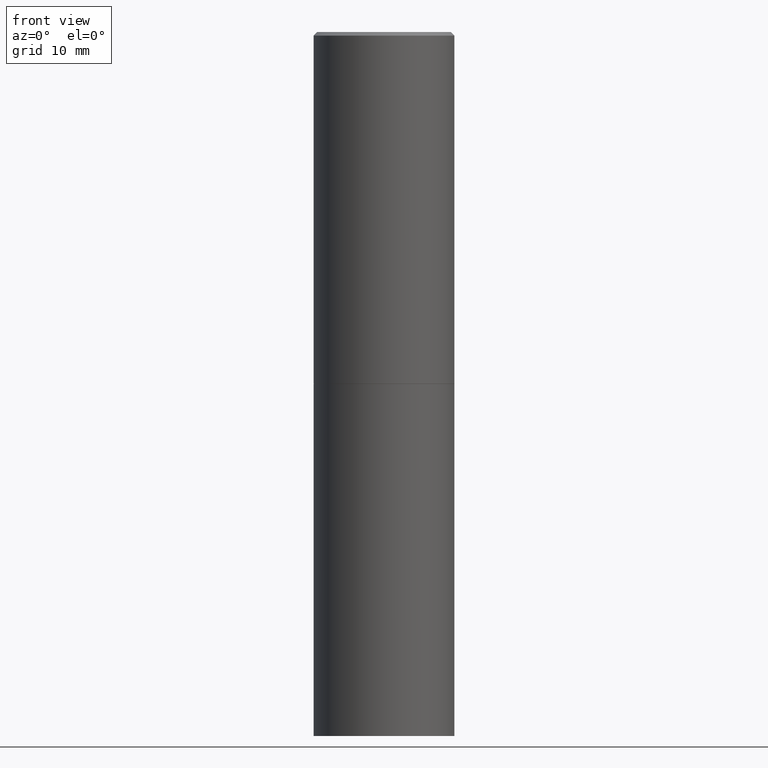
[diagram: clean part render]
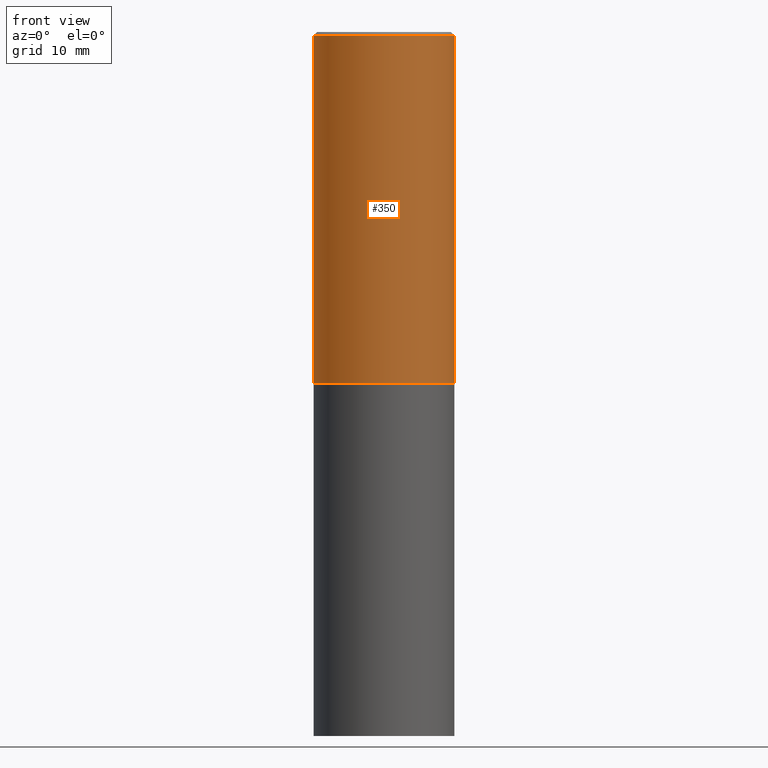
[diagram: same view with one face highlighted and labeled with its STEP entity id]
A machine part, front view. The second image highlights one B-rep face of the part: STEP entity #350.
In plain terms, the highlighted cylindrical surface (partial cylindrical patch) has radius 10 mm, axis along (-0, 0, 1).
Its self-contained STEP definition (entity closure, byte-faithful):
#2 = CARTESIAN_POINT ( 'NONE',  ( -0.3937000000000001609, -6.722528297878588461E-16, -1.967500000000000027 ) ) ;
#10 = VECTOR ( 'NONE', #147, 39.37007874015748143 ) ;
#20 = CARTESIAN_POINT ( 'NONE',  ( -0.3936999999999998279, 2.679362779428218735E-15, -0.02000000000000008715 ) ) ;
#27 = ORIENTED_EDGE ( 'NONE', *, *, #84, .F. ) ;
#32 = VERTEX_POINT ( 'NONE', #2 ) ;
#36 = CIRCLE ( 'NONE', #333, 0.3937000000000001609 ) ;
#40 = CYLINDRICAL_SURFACE ( 'NONE', #218, 0.3936999999999999389 ) ;
#47 = EDGE_CURVE ( 'NONE', #186, #278, #140, .T. ) ;
#69 = DIRECTION ( 'NONE',  ( -2.445468806185136597E-29, 3.491481338843145583E-15, 1.000000000000000000 ) ) ;
#84 = EDGE_CURVE ( 'NONE', #32, #186, #96, .T. ) ;
#89 = CARTESIAN_POINT ( 'NONE',  ( 0.000000000000000000, 0.000000000000000000, 0.000000000000000000 ) ) ;
#91 = CARTESIAN_POINT ( 'NONE',  ( -0.3936999999999999389, 2.797406750687513998E-15, -1.936584745033356455E-29 ) ) ;
#96 = LINE ( 'NONE', #91, #268 ) ;
#140 = CIRCLE ( 'NONE', #182, 0.3936999999999998279 ) ;
#147 = DIRECTION ( 'NONE',  ( -2.445468806185136877E-29, 3.491481338843145188E-15, 1.000000000000000000 ) ) ;
#165 = ORIENTED_EDGE ( 'NONE', *, *, #331, .T. ) ;
#168 = CARTESIAN_POINT ( 'NONE',  ( 0.3937000000000001609, -9.618681940378971917E-15, -1.967500000000000027 ) ) ;
#182 = AXIS2_PLACEMENT_3D ( 'NONE', #284, #69, #260 ) ;
#186 = VERTEX_POINT ( 'NONE', #20 ) ;
#195 = DIRECTION ( 'NONE',  ( -2.445468806185136597E-29, 3.491481338843145583E-15, 1.000000000000000000 ) ) ;
#201 = FACE_OUTER_BOUND ( 'NONE', #221, .T. ) ;
#218 = AXIS2_PLACEMENT_3D ( 'NONE', #89, #195, #230 ) ;
#221 = EDGE_LOOP ( 'NONE', ( #27, #165, #269, #251 ) ) ;
#224 = DIRECTION ( 'NONE',  ( -2.445468806185136877E-29, 3.491481338843145188E-15, 1.000000000000000000 ) ) ;
#227 = CARTESIAN_POINT ( 'NONE',  ( 4.811459876169256232E-29, -6.869489534173888700E-15, -1.967500000000000027 ) ) ;
#230 = DIRECTION ( 'NONE',  ( 1.000000000000000000, -6.982962677686266711E-15, 4.876176775795935793E-29 ) ) ;
#248 = VERTEX_POINT ( 'NONE', #168 ) ;
#251 = ORIENTED_EDGE ( 'NONE', *, *, #47, .F. ) ;
#258 = DIRECTION ( 'NONE',  ( -2.445468806185136597E-29, 3.491481338843145583E-15, 1.000000000000000000 ) ) ;
#260 = DIRECTION ( 'NONE',  ( 1.000000000000000000, -6.982962677686266711E-15, 0.000000000000000000 ) ) ;
#268 = VECTOR ( 'NONE', #224, 39.37007874015748143 ) ;
#269 = ORIENTED_EDGE ( 'NONE', *, *, #299, .T. ) ;
#278 = VERTEX_POINT ( 'NONE', #285 ) ;
#284 = CARTESIAN_POINT ( 'NONE',  ( 4.890937612370294178E-31, -6.982962677686321191E-17, -0.02000000000000008715 ) ) ;
#285 = CARTESIAN_POINT ( 'NONE',  ( 0.3936999999999998279, -2.770807688499514156E-15, -0.02000000000000008715 ) ) ;
#299 = EDGE_CURVE ( 'NONE', #248, #278, #312, .T. ) ;
#312 = LINE ( 'NONE', #351, #10 ) ;
#331 = EDGE_CURVE ( 'NONE', #32, #248, #36, .T. ) ;
#333 = AXIS2_PLACEMENT_3D ( 'NONE', #227, #258, #343 ) ;
#343 = DIRECTION ( 'NONE',  ( 1.000000000000000000, -6.982962677686265922E-15, 0.000000000000000000 ) ) ;
#350 = ADVANCED_FACE ( 'NONE', ( #201 ), #40, .T. ) ;
#351 = CARTESIAN_POINT ( 'NONE',  ( 0.3936999999999999389, -2.749192406205082822E-15, 1.919750796630859611E-29 ) ) ;